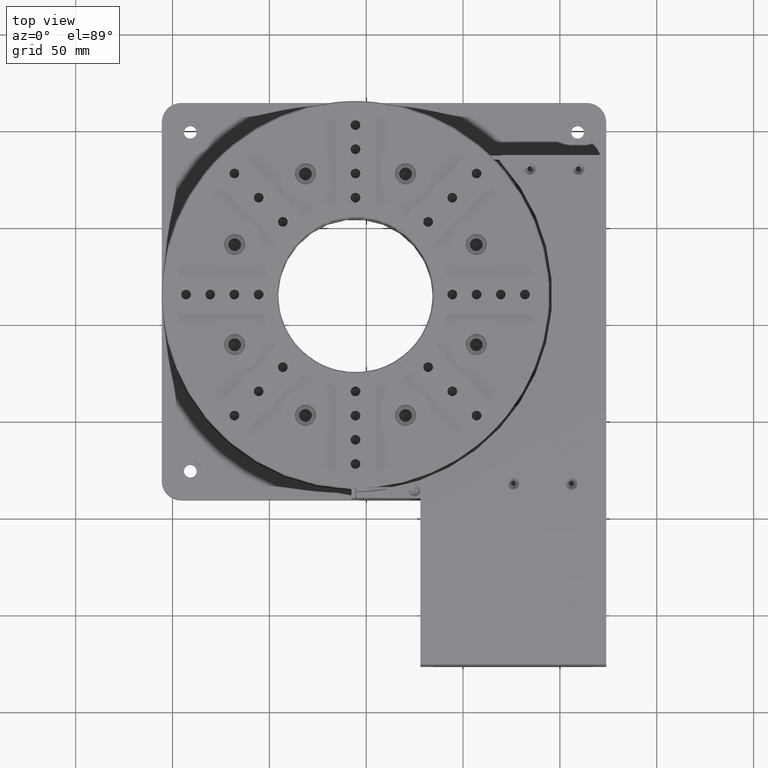
[diagram: clean part render]
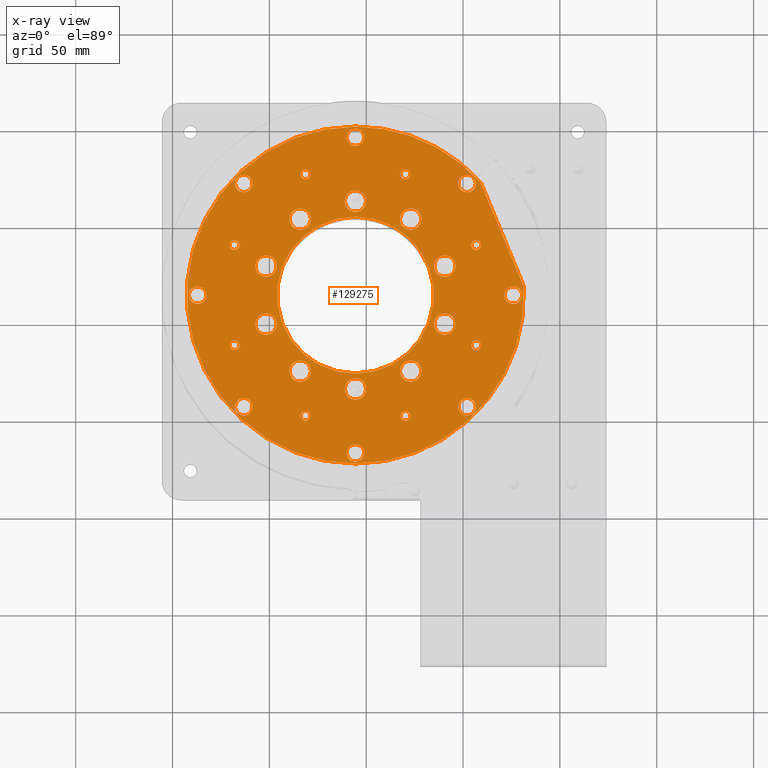
[diagram: x-ray — body ghosted, one internal face saturated and labeled with its STEP entity id]
A machine part, top view, then the same camera in x-ray: the body is ghosted and one INTERNAL B-rep face — a face not visible from any outside direction — is saturated and labeled: STEP entity #129275.
In plain terms, the highlighted planar face has unit normal (-0, -0, 1).
Its self-contained STEP definition (entity closure, byte-faithful):
#194 = VERTEX_POINT ( 'NONE', #18036 ) ;
#768 = EDGE_CURVE ( 'NONE', #14835, #121137, #109022, .T. ) ;
#962 = CARTESIAN_POINT ( 'NONE',  ( 2.060991910634255131, -43.09754799312229778, 277.0000000000000000 ) ) ;
#1285 = EDGE_LOOP ( 'NONE', ( #157682, #37200 ) ) ;
#1311 = CARTESIAN_POINT ( 'NONE',  ( -101.6944517963845840, -0.4556695536046329598, 277.0000000000000000 ) ) ;
#1480 = DIRECTION ( 'NONE',  ( -4.492766048988499823E-16, 0.000000000000000000, 1.000000000000000000 ) ) ;
#2951 = CIRCLE ( 'NONE', #157673, 5.499999999999998224 ) ;
#3037 = CIRCLE ( 'NONE', #157605, 5.500000000000000000 ) ;
#3370 = CARTESIAN_POINT ( 'NONE',  ( -117.9300792005820000, 37.86278635822404937, 277.0000000000000000 ) ) ;
#4134 = CIRCLE ( 'NONE', #177407, 5.500000000000000000 ) ;
#4365 = EDGE_LOOP ( 'NONE', ( #46933, #144324 ) ) ;
#4613 = CARTESIAN_POINT ( 'NONE',  ( 2.060991910634255131, -47.59754799312230489, 277.0000000000000000 ) ) ;
#4945 = AXIS2_PLACEMENT_3D ( 'NONE', #133236, #60585, #149656 ) ;
#5053 = EDGE_CURVE ( 'NONE', #38965, #55274, #182604, .T. ) ;
#5167 = CIRCLE ( 'NONE', #98039, 2.500000000000002220 ) ;
#5267 = DIRECTION ( 'NONE',  ( 0.000000000000000000, -1.000000000000000000, 0.000000000000000000 ) ) ;
#6613 = FACE_BOUND ( 'NONE', #115124, .T. ) ;
#7108 = CIRCLE ( 'NONE', #47364, 2.500000000000000444 ) ;
#7424 = AXIS2_PLACEMENT_3D ( 'NONE', #29230, #30200, #88267 ) ;
#7516 = CARTESIAN_POINT ( 'NONE',  ( -55.56821075606990235, 14.53165467358084051, 277.0000000000000000 ) ) ;
#7551 = FACE_BOUND ( 'NONE', #150418, .T. ) ;
#7592 = CARTESIAN_POINT ( 'NONE',  ( -101.6944517963849961, 29.51897890076534736, 277.0000000000000000 ) ) ;
#7635 = CARTESIAN_POINT ( 'NONE',  ( -113.1974134227736073, 72.16085734028440868, 277.0000000000000000 ) ) ;
#7916 = EDGE_CURVE ( 'NONE', #187386, #91000, #160995, .T. ) ;
#7933 = CIRCLE ( 'NONE', #165704, 4.499999999999997335 ) ;
#8028 = ORIENTED_EDGE ( 'NONE', *, *, #8366, .T. ) ;
#8299 = AXIS2_PLACEMENT_3D ( 'NONE', #118550, #177673, #87613 ) ;
#8366 = EDGE_CURVE ( 'NONE', #194, #188218, #58827, .T. ) ;
#8536 = DIRECTION ( 'NONE',  ( 0.000000000000000000, -1.000000000000000000, -1.036039197880273866E-15 ) ) ;
#8677 = DIRECTION ( 'NONE',  ( -4.492766048988499823E-16, 0.000000000000000000, 1.000000000000000000 ) ) ;
#9459 = CIRCLE ( 'NONE', #133195, 2.500000000000002220 ) ;
#9497 = FACE_BOUND ( 'NONE', #41753, .T. ) ;
#9814 = DIRECTION ( 'NONE',  ( 4.492766048988494893E-16, 0.000000000000000000, -1.000000000000000000 ) ) ;
#10079 = AXIS2_PLACEMENT_3D ( 'NONE', #7592, #141221, #64757 ) ;
#10410 = DIRECTION ( 'NONE',  ( 0.000000000000000000, -1.000000000000000000, 0.000000000000000000 ) ) ;
#10433 = ORIENTED_EDGE ( 'NONE', *, *, #157462, .F. ) ;
#10935 = DIRECTION ( 'NONE',  ( 4.492766048988499823E-16, 0.000000000000000000, -1.000000000000000000 ) ) ;
#11251 = EDGE_LOOP ( 'NONE', ( #77262, #89870 ) ) ;
#12634 = CARTESIAN_POINT ( 'NONE',  ( -55.56821075606990235, 14.53165467358084051, 277.0000000000000000 ) ) ;
#13479 = VERTEX_POINT ( 'NONE', #150755 ) ;
#14143 = DIRECTION ( 'NONE',  ( 0.000000000000000000, -1.000000000000000000, 0.000000000000000000 ) ) ;
#14280 = DIRECTION ( 'NONE',  ( 0.000000000000000000, -1.000000000000000000, 0.000000000000000000 ) ) ;
#14718 = ORIENTED_EDGE ( 'NONE', *, *, #148515, .F. ) ;
#14835 = VERTEX_POINT ( 'NONE', #160768 ) ;
#15668 = CIRCLE ( 'NONE', #65081, 5.500000000000001776 ) ;
#15966 = EDGE_CURVE ( 'NONE', #33350, #103681, #23752, .T. ) ;
#16327 = EDGE_CURVE ( 'NONE', #31220, #59654, #91750, .T. ) ;
#16631 = DIRECTION ( 'NONE',  ( 0.000000000000000000, -1.000000000000000000, 0.000000000000000000 ) ) ;
#17730 = DIRECTION ( 'NONE',  ( 4.492766048988494893E-16, 0.000000000000000000, -1.000000000000000000 ) ) ;
#17964 = VERTEX_POINT ( 'NONE', #190341 ) ;
#18036 = CARTESIAN_POINT ( 'NONE',  ( -55.56821075606990235, 68.53165467358091689, 277.0000000000000000 ) ) ;
#18570 = EDGE_CURVE ( 'NONE', #68179, #146131, #153911, .T. ) ;
#19181 = AXIS2_PLACEMENT_3D ( 'NONE', #24402, #158025, #83405 ) ;
#20126 = CIRCLE ( 'NONE', #177885, 2.500000000000002220 ) ;
#20287 = VECTOR ( 'NONE', #185852, 999.9999999999998863 ) ;
#20375 = EDGE_LOOP ( 'NONE', ( #129954, #144499 ) ) ;
#21167 = FACE_BOUND ( 'NONE', #20375, .T. ) ;
#21556 = DIRECTION ( 'NONE',  ( 0.000000000000000000, -1.000000000000000000, 0.000000000000000000 ) ) ;
#22269 = ORIENTED_EDGE ( 'NONE', *, *, #40706, .F. ) ;
#22428 = CARTESIAN_POINT ( 'NONE',  ( -55.56821075606990235, 14.53165467358084051, 277.0000000000000000 ) ) ;
#22519 = DIRECTION ( 'NONE',  ( -4.492766048988499823E-16, 0.000000000000000000, 1.000000000000000000 ) ) ;
#22941 = DIRECTION ( 'NONE',  ( 0.000000000000000000, -1.000000000000000000, 0.000000000000000000 ) ) ;
#23067 = FACE_BOUND ( 'NONE', #49698, .T. ) ;
#23134 = CARTESIAN_POINT ( 'NONE',  ( 6.793657688441969711, 42.86278635822444727, 277.0000000000000000 ) ) ;
#23176 = AXIS2_PLACEMENT_3D ( 'NONE', #162075, #86538, #145622 ) ;
#23708 = CARTESIAN_POINT ( 'NONE',  ( -9.441969715754888526, 5.044330446396090295, 277.0000000000000000 ) ) ;
#23752 = CIRCLE ( 'NONE', #54561, 5.499999999999998224 ) ;
#23866 = EDGE_CURVE ( 'NONE', #188218, #194, #94819, .T. ) ;
#24039 = FACE_BOUND ( 'NONE', #4365, .T. ) ;
#24389 = EDGE_CURVE ( 'NONE', #82342, #26484, #190821, .T. ) ;
#24402 = CARTESIAN_POINT ( 'NONE',  ( 25.93178924393009765, 14.53165467358169849, 277.0000000000000000 ) ) ;
#24648 = CARTESIAN_POINT ( 'NONE',  ( 2.060991910633040103, 76.66085734028520449, 277.0000000000000000 ) ) ;
#25289 = CARTESIAN_POINT ( 'NONE',  ( -137.0682107560700160, 10.03165467358054030, 277.0000000000000000 ) ) ;
#25564 = DIRECTION ( 'NONE',  ( 4.492766048988499823E-16, 0.000000000000000000, -1.000000000000000000 ) ) ;
#26324 = DIRECTION ( 'NONE',  ( 0.000000000000000000, -1.000000000000000000, 0.000000000000000000 ) ) ;
#26413 = CIRCLE ( 'NONE', #140803, 5.499999999999998224 ) ;
#26484 = VERTEX_POINT ( 'NONE', #52644 ) ;
#26728 = VERTEX_POINT ( 'NONE', #116463 ) ;
#27273 = DIRECTION ( 'NONE',  ( 4.492766048988499823E-16, 0.000000000000000000, -1.000000000000000000 ) ) ;
#27579 = VERTEX_POINT ( 'NONE', #23134 ) ;
#27723 = ORIENTED_EDGE ( 'NONE', *, *, #37144, .T. ) ;
#27868 = CARTESIAN_POINT ( 'NONE',  ( -27.06062601988490002, -30.20566955360414951, 277.0000000000000000 ) ) ;
#28187 = CARTESIAN_POINT ( 'NONE',  ( -29.73707907142649987, 76.89352311809280138, 277.0000000000000000 ) ) ;
#28691 = CIRCLE ( 'NONE', #93603, 4.500000000000003553 ) ;
#28745 = CARTESIAN_POINT ( 'NONE',  ( -113.1974134227731952, -43.09754799312310070, 277.0000000000000000 ) ) ;
#28827 = VERTEX_POINT ( 'NONE', #98572 ) ;
#29230 = CARTESIAN_POINT ( 'NONE',  ( -9.441969715754888526, -0.4556695536039759853, 277.0000000000000000 ) ) ;
#29776 = CARTESIAN_POINT ( 'NONE',  ( -55.56821075606990235, 63.03165467358090268, 277.0000000000000000 ) ) ;
#29992 = ORIENTED_EDGE ( 'NONE', *, *, #87767, .F. ) ;
#30200 = DIRECTION ( 'NONE',  ( 4.492766048988499823E-16, 0.000000000000000000, -1.000000000000000000 ) ) ;
#30696 = ORIENTED_EDGE ( 'NONE', *, *, #49054, .T. ) ;
#30801 = EDGE_CURVE ( 'NONE', #137139, #103382, #81999, .T. ) ;
#31220 = VERTEX_POINT ( 'NONE', #3370 ) ;
#31247 = CARTESIAN_POINT ( 'NONE',  ( -29.73707907142649987, 79.39352311809280138, 277.0000000000000000 ) ) ;
#31622 = VERTEX_POINT ( 'NONE', #102896 ) ;
#32316 = DIRECTION ( 'NONE',  ( 0.000000000000000000, -1.000000000000000000, 0.000000000000000000 ) ) ;
#33054 = DIRECTION ( 'NONE',  ( 4.492766048988494893E-16, 0.000000000000000000, -1.000000000000000000 ) ) ;
#33110 = DIRECTION ( 'NONE',  ( -4.492766048988499823E-16, 0.000000000000000000, 1.000000000000000000 ) ) ;
#33220 = DIRECTION ( 'NONE',  ( 0.000000000000000000, -1.000000000000000000, 0.000000000000000000 ) ) ;
#33229 = EDGE_CURVE ( 'NONE', #13479, #114288, #107196, .T. ) ;
#33244 = AXIS2_PLACEMENT_3D ( 'NONE', #50214, #182937, #96639 ) ;
#33350 = VERTEX_POINT ( 'NONE', #39861 ) ;
#33395 = AXIS2_PLACEMENT_3D ( 'NONE', #137582, #63035, #122085 ) ;
#33530 = CARTESIAN_POINT ( 'NONE',  ( 9.065730717649040926, 72.76784281782559560, 277.0000000000000000 ) ) ;
#34180 = VERTEX_POINT ( 'NONE', #4613 ) ;
#34228 = EDGE_LOOP ( 'NONE', ( #141052, #173402 ) ) ;
#34452 = AXIS2_PLACEMENT_3D ( 'NONE', #22428, #169640, #166766 ) ;
#34720 = VERTEX_POINT ( 'NONE', #23708 ) ;
#35175 = CARTESIAN_POINT ( 'NONE',  ( -9.441969715754888526, -5.955669553604029609, 277.0000000000000000 ) ) ;
#35445 = EDGE_CURVE ( 'NONE', #173317, #50944, #163248, .T. ) ;
#36481 = DIRECTION ( 'NONE',  ( 7.975740119433595341E-17, -1.000000000000000000, -1.276118419109375254E-15 ) ) ;
#36624 = CARTESIAN_POINT ( 'NONE',  ( -84.07579549225521021, 48.26897890076550368, 277.0000000000000000 ) ) ;
#36646 = FACE_BOUND ( 'NONE', #173514, .T. ) ;
#36768 = VERTEX_POINT ( 'NONE', #108714 ) ;
#37144 = EDGE_CURVE ( 'NONE', #57853, #174926, #28691, .T. ) ;
#37200 = ORIENTED_EDGE ( 'NONE', *, *, #177212, .F. ) ;
#37704 = CARTESIAN_POINT ( 'NONE',  ( -137.0682107560700160, 19.03165467358054741, 277.0000000000000000 ) ) ;
#38897 = DIRECTION ( 'NONE',  ( 4.492766048988494893E-16, 0.000000000000000000, -1.000000000000000000 ) ) ;
#38921 = DIRECTION ( 'NONE',  ( 4.492766048988499823E-16, 0.000000000000000000, -1.000000000000000000 ) ) ;
#38965 = VERTEX_POINT ( 'NONE', #127788 ) ;
#39165 = AXIS2_PLACEMENT_3D ( 'NONE', #7635, #66697, #109311 ) ;
#39321 = AXIS2_PLACEMENT_3D ( 'NONE', #75997, #136064, #106008 ) ;
#39492 = FACE_BOUND ( 'NONE', #69692, .T. ) ;
#39808 = DIRECTION ( 'NONE',  ( 0.000000000000000000, -1.000000000000000000, 0.000000000000000000 ) ) ;
#39861 = CARTESIAN_POINT ( 'NONE',  ( -9.441969715754989778, 24.01897890076595132, 277.0000000000000000 ) ) ;
#40357 = AXIS2_PLACEMENT_3D ( 'NONE', #174499, #38921, #97966 ) ;
#40677 = CARTESIAN_POINT ( 'NONE',  ( -101.6944517963845840, -5.955669553604609590, 277.0000000000000000 ) ) ;
#40706 = EDGE_CURVE ( 'NONE', #49304, #74693, #115714, .T. ) ;
#40734 = CIRCLE ( 'NONE', #19181, 4.500000000000000888 ) ;
#41533 = CIRCLE ( 'NONE', #124874, 4.500000000000003553 ) ;
#41731 = AXIS2_PLACEMENT_3D ( 'NONE', #44028, #103066, #58586 ) ;
#41753 = EDGE_LOOP ( 'NONE', ( #118490, #134281 ) ) ;
#42374 = EDGE_LOOP ( 'NONE', ( #108441, #191323 ) ) ;
#43364 = CARTESIAN_POINT ( 'NONE',  ( -117.9300792005818010, -11.29947701106275915, 277.0000000000000000 ) ) ;
#43872 = DIRECTION ( 'NONE',  ( 0.000000000000000000, -1.000000000000000000, 0.000000000000000000 ) ) ;
#44028 = CARTESIAN_POINT ( 'NONE',  ( -81.39934244071291403, -47.83021377093130155, 277.0000000000000000 ) ) ;
#44092 = CIRCLE ( 'NONE', #124531, 87.00000000000000000 ) ;
#44484 = AXIS2_PLACEMENT_3D ( 'NONE', #180346, #183185, #62178 ) ;
#44526 = VERTEX_POINT ( 'NONE', #59980 ) ;
#44740 = EDGE_CURVE ( 'NONE', #76655, #34180, #190092, .T. ) ;
#44897 = CIRCLE ( 'NONE', #41731, 2.500000000000002220 ) ;
#45756 = EDGE_CURVE ( 'NONE', #26728, #53985, #44897, .T. ) ;
#46396 = EDGE_CURVE ( 'NONE', #59654, #31220, #168772, .T. ) ;
#46571 = EDGE_LOOP ( 'NONE', ( #154620, #94267 ) ) ;
#46603 = AXIS2_PLACEMENT_3D ( 'NONE', #146789, #1480, #14143 ) ;
#46933 = ORIENTED_EDGE ( 'NONE', *, *, #113937, .T. ) ;
#47364 = AXIS2_PLACEMENT_3D ( 'NONE', #43364, #128870, #155997 ) ;
#47424 = AXIS2_PLACEMENT_3D ( 'NONE', #80305, #8677, #172321 ) ;
#47803 = CARTESIAN_POINT ( 'NONE',  ( -81.39934244071291403, -50.33021377093130155, 277.0000000000000000 ) ) ;
#47982 = DIRECTION ( 'NONE',  ( 0.000000000000000000, -1.000000000000000000, 0.000000000000000000 ) ) ;
#48025 = EDGE_LOOP ( 'NONE', ( #102483, #159729 ) ) ;
#49054 = EDGE_CURVE ( 'NONE', #103681, #33350, #26413, .T. ) ;
#49250 = ORIENTED_EDGE ( 'NONE', *, *, #126839, .T. ) ;
#49304 = VERTEX_POINT ( 'NONE', #77654 ) ;
#49492 = AXIS2_PLACEMENT_3D ( 'NONE', #61506, #166082, #120551 ) ;
#49698 = EDGE_LOOP ( 'NONE', ( #102197, #163392 ) ) ;
#50214 = CARTESIAN_POINT ( 'NONE',  ( -81.39934244071369562, 76.89352311809260243, 277.0000000000000000 ) ) ;
#50944 = VERTEX_POINT ( 'NONE', #24648 ) ;
#51144 = FACE_BOUND ( 'NONE', #183841, .T. ) ;
#51152 = VERTEX_POINT ( 'NONE', #90356 ) ;
#51232 = AXIS2_PLACEMENT_3D ( 'NONE', #125571, #51981, #111017 ) ;
#51235 = CARTESIAN_POINT ( 'NONE',  ( -21.87376323761419883, 147.4623887375821880, 277.0000000000000000 ) ) ;
#51981 = DIRECTION ( 'NONE',  ( 4.492766048988494893E-16, 0.000000000000000000, -1.000000000000000000 ) ) ;
#52106 = FACE_BOUND ( 'NONE', #157709, .T. ) ;
#52216 = AXIS2_PLACEMENT_3D ( 'NONE', #128077, #52572, #69946 ) ;
#52572 = DIRECTION ( 'NONE',  ( 4.492766048988494893E-16, 0.000000000000000000, -1.000000000000000000 ) ) ;
#52644 = CARTESIAN_POINT ( 'NONE',  ( -27.06062601988490002, -19.20566955360399675, 277.0000000000000000 ) ) ;
#52676 = CARTESIAN_POINT ( 'NONE',  ( -55.56821075606990235, 63.03165467358090268, 277.0000000000000000 ) ) ;
#53065 = CARTESIAN_POINT ( 'NONE',  ( 2.060991910634255131, -43.09754799312229778, 277.0000000000000000 ) ) ;
#53301 = AXIS2_PLACEMENT_3D ( 'NONE', #115259, #156983, #125994 ) ;
#53620 = DIRECTION ( 'NONE',  ( 0.000000000000000000, -1.000000000000000000, 0.000000000000000000 ) ) ;
#53985 = VERTEX_POINT ( 'NONE', #47803 ) ;
#54131 = CARTESIAN_POINT ( 'NONE',  ( -101.6944517963849961, 35.01897890076534736, 277.0000000000000000 ) ) ;
#54561 = AXIS2_PLACEMENT_3D ( 'NONE', #129062, #10935, #157162 ) ;
#54594 = CARTESIAN_POINT ( 'NONE',  ( 2.060991910633040103, 67.66085734028520449, 277.0000000000000000 ) ) ;
#55274 = VERTEX_POINT ( 'NONE', #83779 ) ;
#56166 = CIRCLE ( 'NONE', #145883, 5.499999999999998224 ) ;
#56659 = VERTEX_POINT ( 'NONE', #169141 ) ;
#57853 = VERTEX_POINT ( 'NONE', #181321 ) ;
#58374 = CARTESIAN_POINT ( 'NONE',  ( -27.06062601988514871, 59.26897890076599396, 277.0000000000000000 ) ) ;
#58429 = DIRECTION ( 'NONE',  ( 4.492766048988499823E-16, 0.000000000000000000, -1.000000000000000000 ) ) ;
#58586 = DIRECTION ( 'NONE',  ( 0.000000000000000000, -1.000000000000000000, 0.000000000000000000 ) ) ;
#58827 = CIRCLE ( 'NONE', #185706, 5.499999999999998224 ) ;
#59007 = CARTESIAN_POINT ( 'NONE',  ( -81.39934244071369562, 74.39352311809258822, 277.0000000000000000 ) ) ;
#59654 = VERTEX_POINT ( 'NONE', #82876 ) ;
#59745 = CARTESIAN_POINT ( 'NONE',  ( -81.39934244071369562, 76.89352311809260243, 277.0000000000000000 ) ) ;
#59980 = CARTESIAN_POINT ( 'NONE',  ( -117.9300792005818010, -13.79947701106275915, 277.0000000000000000 ) ) ;
#60051 = DIRECTION ( 'NONE',  ( 9.637352644315600173E-17, -1.000000000000000000, 0.000000000000000000 ) ) ;
#60065 = DIRECTION ( 'NONE',  ( 0.000000000000000000, -1.000000000000000000, 0.000000000000000000 ) ) ;
#60585 = DIRECTION ( 'NONE',  ( -4.492766048988499823E-16, -1.276118419109376043E-15, 1.000000000000000000 ) ) ;
#60720 = DIRECTION ( 'NONE',  ( 4.492766048988499823E-16, 0.000000000000000000, -1.000000000000000000 ) ) ;
#60856 = DIRECTION ( 'NONE',  ( 0.000000000000000000, -1.000000000000000000, 0.000000000000000000 ) ) ;
#61359 = VERTEX_POINT ( 'NONE', #149166 ) ;
#61506 = CARTESIAN_POINT ( 'NONE',  ( -27.06062601988490002, -24.70566955360409978, 277.0000000000000000 ) ) ;
#61968 = ORIENTED_EDGE ( 'NONE', *, *, #768, .T. ) ;
#62178 = DIRECTION ( 'NONE',  ( 9.637352644315587847E-17, -1.000000000000000000, 0.000000000000000000 ) ) ;
#62763 = EDGE_CURVE ( 'NONE', #91000, #187386, #181249, .T. ) ;
#62904 = EDGE_CURVE ( 'NONE', #189210, #137139, #94500, .T. ) ;
#63035 = DIRECTION ( 'NONE',  ( 4.492766048988494893E-16, 0.000000000000000000, -1.000000000000000000 ) ) ;
#63385 = CIRCLE ( 'NONE', #23176, 5.499999999999998224 ) ;
#63525 = AXIS2_PLACEMENT_3D ( 'NONE', #144425, #100809, #159945 ) ;
#64393 = EDGE_LOOP ( 'NONE', ( #84265, #127052 ) ) ;
#64540 = CIRCLE ( 'NONE', #52216, 4.499999999999997335 ) ;
#64757 = DIRECTION ( 'NONE',  ( 0.000000000000000000, -1.000000000000000000, 0.000000000000000000 ) ) ;
#65081 = AXIS2_PLACEMENT_3D ( 'NONE', #108668, #125120, #21556 ) ;
#65661 = FACE_BOUND ( 'NONE', #100907, .T. ) ;
#66610 = FACE_BOUND ( 'NONE', #42374, .T. ) ;
#66697 = DIRECTION ( 'NONE',  ( 4.492766048988494893E-16, 0.000000000000000000, -1.000000000000000000 ) ) ;
#67111 = ORIENTED_EDGE ( 'NONE', *, *, #18570, .F. ) ;
#67172 = EDGE_CURVE ( 'NONE', #26484, #82342, #157752, .T. ) ;
#67386 = ORIENTED_EDGE ( 'NONE', *, *, #100213, .T. ) ;
#68179 = VERTEX_POINT ( 'NONE', #131557 ) ;
#68933 = EDGE_CURVE ( 'NONE', #36768, #146166, #130096, .T. ) ;
#69470 = FACE_BOUND ( 'NONE', #34228, .T. ) ;
#69692 = EDGE_LOOP ( 'NONE', ( #95875, #70433 ) ) ;
#69946 = DIRECTION ( 'NONE',  ( 0.000000000000000000, -1.000000000000000000, 0.000000000000000000 ) ) ;
#70235 = EDGE_CURVE ( 'NONE', #118057, #168531, #3037, .T. ) ;
#70433 = ORIENTED_EDGE ( 'NONE', *, *, #153312, .T. ) ;
#70769 = DIRECTION ( 'NONE',  ( -4.492766048988499823E-16, 0.000000000000000000, 1.000000000000000000 ) ) ;
#71743 = EDGE_CURVE ( 'NONE', #139786, #28827, #15668, .T. ) ;
#71825 = CIRCLE ( 'NONE', #53301, 5.500000000000000000 ) ;
#71847 = EDGE_CURVE ( 'NONE', #141607, #160347, #89854, .T. ) ;
#73007 = DIRECTION ( 'NONE',  ( 4.492766048988499823E-16, 0.000000000000000000, -1.000000000000000000 ) ) ;
#73330 = AXIS2_PLACEMENT_3D ( 'NONE', #84328, #70769, #190872 ) ;
#73515 = AXIS2_PLACEMENT_3D ( 'NONE', #7516, #126619, #168312 ) ;
#73750 = EDGE_LOOP ( 'NONE', ( #113759, #92155 ) ) ;
#73815 = ORIENTED_EDGE ( 'NONE', *, *, #23866, .T. ) ;
#74565 = DIRECTION ( 'NONE',  ( -4.492766048988499823E-16, 0.000000000000000000, 1.000000000000000000 ) ) ;
#74693 = VERTEX_POINT ( 'NONE', #83457 ) ;
#75591 = CARTESIAN_POINT ( 'NONE',  ( -101.6944517963845840, 5.044330446395350442, 277.0000000000000000 ) ) ;
#75997 = CARTESIAN_POINT ( 'NONE',  ( 6.793657688442309883, -11.29947701106189939, 277.0000000000000000 ) ) ;
#76655 = VERTEX_POINT ( 'NONE', #137705 ) ;
#76824 = ORIENTED_EDGE ( 'NONE', *, *, #62904, .T. ) ;
#77262 = ORIENTED_EDGE ( 'NONE', *, *, #164441, .T. ) ;
#77263 = AXIS2_PLACEMENT_3D ( 'NONE', #180607, #184420, #5267 ) ;
#77460 = CARTESIAN_POINT ( 'NONE',  ( -55.56821075606990235, 55.03165467358089558, 277.0000000000000000 ) ) ;
#77654 = CARTESIAN_POINT ( 'NONE',  ( 6.793657688442309883, -13.79947701106190117, 277.0000000000000000 ) ) ;
#78460 = EDGE_CURVE ( 'NONE', #55274, #38965, #40734, .T. ) ;
#78977 = VERTEX_POINT ( 'NONE', #77460 ) ;
#79218 = DIRECTION ( 'NONE',  ( 4.492766048988499823E-16, 4.329837076251034727E-32, -1.000000000000000000 ) ) ;
#79258 = AXIS2_PLACEMENT_3D ( 'NONE', #92132, #135731, #152161 ) ;
#79295 = AXIS2_PLACEMENT_3D ( 'NONE', #29776, #60720, #190547 ) ;
#79485 = DIRECTION ( 'NONE',  ( 0.000000000000000000, -1.000000000000000000, 0.000000000000000000 ) ) ;
#79644 = AXIS2_PLACEMENT_3D ( 'NONE', #127783, #84168, #172355 ) ;
#80158 = FACE_BOUND ( 'NONE', #114417, .T. ) ;
#80305 = CARTESIAN_POINT ( 'NONE',  ( -29.73707907142649987, 76.89352311809280138, 277.0000000000000000 ) ) ;
#80499 = AXIS2_PLACEMENT_3D ( 'NONE', #103873, #17730, #132985 ) ;
#81311 = CARTESIAN_POINT ( 'NONE',  ( -9.441969715754989778, 35.01897890076610054, 277.0000000000000000 ) ) ;
#81999 = CIRCLE ( 'NONE', #181081, 87.00000000000000000 ) ;
#82065 = FACE_BOUND ( 'NONE', #158498, .T. ) ;
#82342 = VERTEX_POINT ( 'NONE', #27868 ) ;
#82876 = CARTESIAN_POINT ( 'NONE',  ( -117.9300792005820000, 42.86278635822404937, 277.0000000000000000 ) ) ;
#83405 = DIRECTION ( 'NONE',  ( 0.000000000000000000, -1.000000000000000000, 0.000000000000000000 ) ) ;
#83457 = CARTESIAN_POINT ( 'NONE',  ( 6.793657688442319653, -8.799477011061931364, 277.0000000000000000 ) ) ;
#83779 = CARTESIAN_POINT ( 'NONE',  ( 25.93178924393009765, 10.03165467358169849, 277.0000000000000000 ) ) ;
#83995 = FACE_BOUND ( 'NONE', #11251, .T. ) ;
#84168 = DIRECTION ( 'NONE',  ( 4.492766048988499823E-16, 4.329837076251034727E-32, -1.000000000000000000 ) ) ;
#84265 = ORIENTED_EDGE ( 'NONE', *, *, #16327, .F. ) ;
#84328 = CARTESIAN_POINT ( 'NONE',  ( -81.39934244071291403, -47.83021377093130155, 277.0000000000000000 ) ) ;
#85420 = CARTESIAN_POINT ( 'NONE',  ( -27.06062601988514871, 48.26897890076590159, 277.0000000000000000 ) ) ;
#86538 = DIRECTION ( 'NONE',  ( 4.492766048988499823E-16, 0.000000000000000000, -1.000000000000000000 ) ) ;
#87114 = EDGE_LOOP ( 'NONE', ( #49250, #144786 ) ) ;
#87497 = ORIENTED_EDGE ( 'NONE', *, *, #187252, .T. ) ;
#87613 = DIRECTION ( 'NONE',  ( 0.000000000000000000, -1.000000000000000000, 0.000000000000000000 ) ) ;
#87767 = EDGE_CURVE ( 'NONE', #185422, #103382, #155800, .T. ) ;
#88267 = DIRECTION ( 'NONE',  ( 0.000000000000000000, -1.000000000000000000, 0.000000000000000000 ) ) ;
#89765 = ORIENTED_EDGE ( 'NONE', *, *, #137080, .T. ) ;
#89854 = CIRCLE ( 'NONE', #40357, 5.499999999999998224 ) ;
#89870 = ORIENTED_EDGE ( 'NONE', *, *, #71847, .T. ) ;
#90356 = CARTESIAN_POINT ( 'NONE',  ( -84.07579549225521021, 59.26897890076560316, 277.0000000000000000 ) ) ;
#90531 = AXIS2_PLACEMENT_3D ( 'NONE', #136294, #92676, #177050 ) ;
#91000 = VERTEX_POINT ( 'NONE', #37704 ) ;
#91750 = CIRCLE ( 'NONE', #79258, 2.500000000000002220 ) ;
#92078 = VERTEX_POINT ( 'NONE', #118668 ) ;
#92123 = ORIENTED_EDGE ( 'NONE', *, *, #157284, .F. ) ;
#92132 = CARTESIAN_POINT ( 'NONE',  ( -117.9300792005820000, 40.36278635822404937, 277.0000000000000000 ) ) ;
#92155 = ORIENTED_EDGE ( 'NONE', *, *, #106762, .F. ) ;
#92676 = DIRECTION ( 'NONE',  ( 4.492766048988499823E-16, 0.000000000000000000, -1.000000000000000000 ) ) ;
#93603 = AXIS2_PLACEMENT_3D ( 'NONE', #121142, #33054, #16631 ) ;
#94058 = VERTEX_POINT ( 'NONE', #182600 ) ;
#94126 = DIRECTION ( 'NONE',  ( 4.492766048988494893E-16, 0.000000000000000000, -1.000000000000000000 ) ) ;
#94267 = ORIENTED_EDGE ( 'NONE', *, *, #62763, .T. ) ;
#94500 = CIRCLE ( 'NONE', #4945, 87.00000000000000000 ) ;
#94727 = FACE_BOUND ( 'NONE', #104724, .T. ) ;
#94819 = CIRCLE ( 'NONE', #79295, 5.499999999999998224 ) ;
#95670 = CARTESIAN_POINT ( 'NONE',  ( -55.56821075606990235, 14.53165467358084051, 277.0000000000000000 ) ) ;
#95875 = ORIENTED_EDGE ( 'NONE', *, *, #98226, .T. ) ;
#96639 = DIRECTION ( 'NONE',  ( 0.000000000000000000, -1.000000000000000000, 0.000000000000000000 ) ) ;
#96783 = EDGE_CURVE ( 'NONE', #152941, #78977, #141667, .T. ) ;
#97214 = CARTESIAN_POINT ( 'NONE',  ( -55.56821075606990235, 91.53165467358078899, 277.0000000000000000 ) ) ;
#97782 = CARTESIAN_POINT ( 'NONE',  ( 6.793657688442309883, -11.29947701106189939, 277.0000000000000000 ) ) ;
#97966 = DIRECTION ( 'NONE',  ( 0.000000000000000000, -1.000000000000000000, 0.000000000000000000 ) ) ;
#98039 = AXIS2_PLACEMENT_3D ( 'NONE', #28187, #74565, #60065 ) ;
#98074 = VERTEX_POINT ( 'NONE', #35175 ) ;
#98226 = EDGE_CURVE ( 'NONE', #17964, #56659, #64540, .T. ) ;
#98311 = VERTEX_POINT ( 'NONE', #133809 ) ;
#98572 = CARTESIAN_POINT ( 'NONE',  ( -84.07579549225430071, -30.20566955360455097, 277.0000000000000000 ) ) ;
#100184 = VERTEX_POINT ( 'NONE', #122173 ) ;
#100213 = EDGE_CURVE ( 'NONE', #98074, #34720, #71825, .T. ) ;
#100744 = DIRECTION ( 'NONE',  ( 0.000000000000000000, -1.000000000000000000, 0.000000000000000000 ) ) ;
#100809 = DIRECTION ( 'NONE',  ( 4.492766048988499823E-16, 0.000000000000000000, -1.000000000000000000 ) ) ;
#100907 = EDGE_LOOP ( 'NONE', ( #14718, #67111 ) ) ;
#101172 = VERTEX_POINT ( 'NONE', #36624 ) ;
#101711 = DIRECTION ( 'NONE',  ( 4.492766048988499823E-16, 4.329837076251034727E-32, -1.000000000000000000 ) ) ;
#101781 = AXIS2_PLACEMENT_3D ( 'NONE', #59745, #106149, #14280 ) ;
#102149 = EDGE_CURVE ( 'NONE', #44526, #98311, #7108, .T. ) ;
#102197 = ORIENTED_EDGE ( 'NONE', *, *, #96783, .T. ) ;
#102483 = ORIENTED_EDGE ( 'NONE', *, *, #176387, .T. ) ;
#102896 = CARTESIAN_POINT ( 'NONE',  ( -29.73707907142649987, 74.39352311809280138, 277.0000000000000000 ) ) ;
#103066 = DIRECTION ( 'NONE',  ( -4.492766048988499823E-16, 0.000000000000000000, 1.000000000000000000 ) ) ;
#103382 = VERTEX_POINT ( 'NONE', #157238 ) ;
#103681 = VERTEX_POINT ( 'NONE', #81311 ) ;
#103873 = CARTESIAN_POINT ( 'NONE',  ( 25.93178924393009765, 14.53165467358169849, 277.0000000000000000 ) ) ;
#104724 = EDGE_LOOP ( 'NONE', ( #73815, #8028 ) ) ;
#104877 = EDGE_CURVE ( 'NONE', #174926, #57853, #41533, .T. ) ;
#104909 = AXIS2_PLACEMENT_3D ( 'NONE', #175377, #144352, #100744 ) ;
#105497 = AXIS2_PLACEMENT_3D ( 'NONE', #142465, #9814, #39808 ) ;
#106008 = DIRECTION ( 'NONE',  ( 0.000000000000000000, -1.000000000000000000, 0.000000000000000000 ) ) ;
#106149 = DIRECTION ( 'NONE',  ( -4.492766048988499823E-16, 0.000000000000000000, 1.000000000000000000 ) ) ;
#106176 = DIRECTION ( 'NONE',  ( 7.975740119433595341E-17, -1.000000000000000000, -1.276118419109375254E-15 ) ) ;
#106179 = ORIENTED_EDGE ( 'NONE', *, *, #176245, .F. ) ;
#106715 = DIRECTION ( 'NONE',  ( 4.492766048988499823E-16, 0.000000000000000000, -1.000000000000000000 ) ) ;
#106762 = EDGE_CURVE ( 'NONE', #146166, #36768, #20126, .T. ) ;
#107196 = CIRCLE ( 'NONE', #190768, 4.500000000000003553 ) ;
#107943 = CIRCLE ( 'NONE', #104909, 5.500000000000001776 ) ;
#108441 = ORIENTED_EDGE ( 'NONE', *, *, #155018, .T. ) ;
#108668 = CARTESIAN_POINT ( 'NONE',  ( -84.07579549225430071, -24.70566955360449768, 277.0000000000000000 ) ) ;
#108714 = CARTESIAN_POINT ( 'NONE',  ( -29.73707907142565077, -50.33021377093069759, 277.0000000000000000 ) ) ;
#109022 = CIRCLE ( 'NONE', #90531, 5.499999999999998224 ) ;
#109311 = DIRECTION ( 'NONE',  ( 0.000000000000000000, -1.000000000000000000, 0.000000000000000000 ) ) ;
#109405 = CIRCLE ( 'NONE', #44484, 4.500000000000003553 ) ;
#110188 = FACE_OUTER_BOUND ( 'NONE', #165448, .T. ) ;
#110781 = CARTESIAN_POINT ( 'NONE',  ( -55.56821075606990235, 101.5316546735807890, 277.0000000000000000 ) ) ;
#111017 = DIRECTION ( 'NONE',  ( 0.000000000000000000, -1.000000000000000000, 0.000000000000000000 ) ) ;
#111144 = FACE_BOUND ( 'NONE', #135663, .T. ) ;
#112363 = AXIS2_PLACEMENT_3D ( 'NONE', #143052, #139243, #10410 ) ;
#113259 = DIRECTION ( 'NONE',  ( 0.000000000000000000, -1.000000000000000000, 0.000000000000000000 ) ) ;
#113759 = ORIENTED_EDGE ( 'NONE', *, *, #68933, .F. ) ;
#113937 = EDGE_CURVE ( 'NONE', #92078, #61359, #181465, .T. ) ;
#114288 = VERTEX_POINT ( 'NONE', #160630 ) ;
#114417 = EDGE_LOOP ( 'NONE', ( #92123, #190892 ) ) ;
#114465 = AXIS2_PLACEMENT_3D ( 'NONE', #128428, #187529, #143902 ) ;
#114810 = EDGE_CURVE ( 'NONE', #74693, #49304, #147559, .T. ) ;
#115124 = EDGE_LOOP ( 'NONE', ( #10433, #106179 ) ) ;
#115259 = CARTESIAN_POINT ( 'NONE',  ( -9.441969715754888526, -0.4556695536039759853, 277.0000000000000000 ) ) ;
#115531 = CARTESIAN_POINT ( 'NONE',  ( -55.56821075606990235, -33.96834532641915416, 277.0000000000000000 ) ) ;
#115714 = CIRCLE ( 'NONE', #146575, 2.500000000000000444 ) ;
#116038 = CIRCLE ( 'NONE', #63525, 5.499999999999998224 ) ;
#116463 = CARTESIAN_POINT ( 'NONE',  ( -81.39934244071291403, -45.33021377093130155, 277.0000000000000000 ) ) ;
#116856 = CIRCLE ( 'NONE', #33395, 4.500000000000003553 ) ;
#117268 = CIRCLE ( 'NONE', #101781, 2.500000000000002220 ) ;
#117933 = CIRCLE ( 'NONE', #34452, 40.50000000000000000 ) ;
#117971 = CARTESIAN_POINT ( 'NONE',  ( 6.793657688441969711, 40.36278635822445437, 277.0000000000000000 ) ) ;
#118057 = VERTEX_POINT ( 'NONE', #75591 ) ;
#118282 = CIRCLE ( 'NONE', #10079, 5.500000000000001776 ) ;
#118490 = ORIENTED_EDGE ( 'NONE', *, *, #174230, .T. ) ;
#118550 = CARTESIAN_POINT ( 'NONE',  ( -27.06062601988490002, -24.70566955360409978, 277.0000000000000000 ) ) ;
#118668 = CARTESIAN_POINT ( 'NONE',  ( -113.1974134227736073, 67.66085734028440868, 277.0000000000000000 ) ) ;
#118826 = EDGE_LOOP ( 'NONE', ( #155481, #89765 ) ) ;
#120551 = DIRECTION ( 'NONE',  ( 0.000000000000000000, -1.000000000000000000, 0.000000000000000000 ) ) ;
#121137 = VERTEX_POINT ( 'NONE', #185077 ) ;
#121142 = CARTESIAN_POINT ( 'NONE',  ( -55.56821075606990235, 96.03165467358090268, 277.0000000000000000 ) ) ;
#121238 = CIRCLE ( 'NONE', #146033, 5.500000000000001776 ) ;
#121562 = DIRECTION ( 'NONE',  ( 4.492766048988494893E-16, 0.000000000000000000, -1.000000000000000000 ) ) ;
#122085 = DIRECTION ( 'NONE',  ( 0.000000000000000000, -1.000000000000000000, 0.000000000000000000 ) ) ;
#122173 = CARTESIAN_POINT ( 'NONE',  ( 6.793657688441969711, 37.86278635822445437, 277.0000000000000000 ) ) ;
#122686 = CIRCLE ( 'NONE', #147462, 4.499999999999997335 ) ;
#123117 = EDGE_CURVE ( 'NONE', #159073, #94058, #107943, .T. ) ;
#123846 = ORIENTED_EDGE ( 'NONE', *, *, #15966, .T. ) ;
#124531 = AXIS2_PLACEMENT_3D ( 'NONE', #12634, #160803, #106176 ) ;
#124536 = EDGE_CURVE ( 'NONE', #27579, #100184, #129970, .T. ) ;
#124684 = CIRCLE ( 'NONE', #47424, 2.500000000000002220 ) ;
#124737 = FACE_BOUND ( 'NONE', #127387, .T. ) ;
#124874 = AXIS2_PLACEMENT_3D ( 'NONE', #167780, #94126, #33220 ) ;
#125120 = DIRECTION ( 'NONE',  ( 4.492766048988499823E-16, 0.000000000000000000, -1.000000000000000000 ) ) ;
#125571 = CARTESIAN_POINT ( 'NONE',  ( -137.0682107560700160, 14.53165467358055984, 277.0000000000000000 ) ) ;
#125695 = FACE_BOUND ( 'NONE', #64393, .T. ) ;
#125994 = DIRECTION ( 'NONE',  ( 0.000000000000000000, -1.000000000000000000, 0.000000000000000000 ) ) ;
#126619 = DIRECTION ( 'NONE',  ( 4.492766048988499823E-16, 1.370645709413771902E-15, -1.000000000000000000 ) ) ;
#126658 = FACE_BOUND ( 'NONE', #46571, .T. ) ;
#126839 = EDGE_CURVE ( 'NONE', #94058, #159073, #118282, .T. ) ;
#127052 = ORIENTED_EDGE ( 'NONE', *, *, #46396, .F. ) ;
#127230 = DIRECTION ( 'NONE',  ( 0.000000000000000000, -1.000000000000000000, 0.000000000000000000 ) ) ;
#127387 = EDGE_LOOP ( 'NONE', ( #22269, #168677 ) ) ;
#127783 = CARTESIAN_POINT ( 'NONE',  ( 2.060991910633040103, 72.16085734028521870, 277.0000000000000000 ) ) ;
#127788 = CARTESIAN_POINT ( 'NONE',  ( 25.93178924393009765, 19.03165467358169849, 277.0000000000000000 ) ) ;
#128077 = CARTESIAN_POINT ( 'NONE',  ( -113.1974134227731952, -43.09754799312310070, 277.0000000000000000 ) ) ;
#128428 = CARTESIAN_POINT ( 'NONE',  ( -137.0682107560700160, 14.53165467358055984, 277.0000000000000000 ) ) ;
#128870 = DIRECTION ( 'NONE',  ( -4.492766048988499823E-16, 0.000000000000000000, 1.000000000000000000 ) ) ;
#129062 = CARTESIAN_POINT ( 'NONE',  ( -9.441969715754989778, 29.51897890076599751, 277.0000000000000000 ) ) ;
#129275 = ADVANCED_FACE ( 'NONE', ( #23067, #9497, #173154, #139279, #184810, #94727, #83995, #7551, #155710, #82065, #36646, #111144, #51144, #66610, #21167, #39492, #126658, #24039, #52106, #69470, #6613, #65661, #125695, #141180, #80158, #171214, #124737, #110188 ), #185761, .T. ) ;
#129954 = ORIENTED_EDGE ( 'NONE', *, *, #33229, .T. ) ;
#129970 = CIRCLE ( 'NONE', #77263, 2.500000000000002220 ) ;
#130096 = CIRCLE ( 'NONE', #46603, 2.500000000000002220 ) ;
#131321 = AXIS2_PLACEMENT_3D ( 'NONE', #53065, #79218, #170288 ) ;
#131557 = CARTESIAN_POINT ( 'NONE',  ( -81.39934244071369562, 79.39352311809260243, 277.0000000000000000 ) ) ;
#132649 = CARTESIAN_POINT ( 'NONE',  ( -84.07579549225430071, -19.20566955360440176, 277.0000000000000000 ) ) ;
#132757 = CARTESIAN_POINT ( 'NONE',  ( -101.6944517963845840, -0.4556695536046329598, 277.0000000000000000 ) ) ;
#132985 = DIRECTION ( 'NONE',  ( 0.000000000000000000, -1.000000000000000000, 0.000000000000000000 ) ) ;
#133195 = AXIS2_PLACEMENT_3D ( 'NONE', #117971, #178058, #60856 ) ;
#133236 = CARTESIAN_POINT ( 'NONE',  ( -55.56821075606990235, 14.53165467358084051, 277.0000000000000000 ) ) ;
#133809 = CARTESIAN_POINT ( 'NONE',  ( -117.9300792005818010, -8.799477011062769805, 277.0000000000000000 ) ) ;
#134087 = ORIENTED_EDGE ( 'NONE', *, *, #104877, .T. ) ;
#134281 = ORIENTED_EDGE ( 'NONE', *, *, #71743, .T. ) ;
#135663 = EDGE_LOOP ( 'NONE', ( #146025, #87497 ) ) ;
#135731 = DIRECTION ( 'NONE',  ( -4.492766048988499823E-16, 0.000000000000000000, 1.000000000000000000 ) ) ;
#135899 = ORIENTED_EDGE ( 'NONE', *, *, #24389, .T. ) ;
#136064 = DIRECTION ( 'NONE',  ( -4.492766048988499823E-16, 0.000000000000000000, 1.000000000000000000 ) ) ;
#136294 = CARTESIAN_POINT ( 'NONE',  ( -55.56821075606990235, -33.96834532641915416, 277.0000000000000000 ) ) ;
#136535 = EDGE_CURVE ( 'NONE', #101172, #51152, #63385, .T. ) ;
#137080 = EDGE_CURVE ( 'NONE', #51152, #101172, #116038, .T. ) ;
#137139 = VERTEX_POINT ( 'NONE', #172553 ) ;
#137140 = CIRCLE ( 'NONE', #112363, 2.500000000000000444 ) ;
#137582 = CARTESIAN_POINT ( 'NONE',  ( -55.56821075606990235, -66.96834532641919679, 277.0000000000000000 ) ) ;
#137705 = CARTESIAN_POINT ( 'NONE',  ( 2.060991910634255131, -38.59754799312225515, 277.0000000000000000 ) ) ;
#138158 = CIRCLE ( 'NONE', #73330, 2.500000000000002220 ) ;
#138535 = ORIENTED_EDGE ( 'NONE', *, *, #180452, .T. ) ;
#139243 = DIRECTION ( 'NONE',  ( -4.492766048988499823E-16, 0.000000000000000000, 1.000000000000000000 ) ) ;
#139279 = FACE_BOUND ( 'NONE', #87114, .T. ) ;
#139786 = VERTEX_POINT ( 'NONE', #132649 ) ;
#140785 = ORIENTED_EDGE ( 'NONE', *, *, #30801, .T. ) ;
#140803 = AXIS2_PLACEMENT_3D ( 'NONE', #144640, #58429, #43872 ) ;
#141052 = ORIENTED_EDGE ( 'NONE', *, *, #166706, .F. ) ;
#141180 = FACE_BOUND ( 'NONE', #1285, .T. ) ;
#141221 = DIRECTION ( 'NONE',  ( 4.492766048988499823E-16, 0.000000000000000000, -1.000000000000000000 ) ) ;
#141607 = VERTEX_POINT ( 'NONE', #58374 ) ;
#141667 = CIRCLE ( 'NONE', #73515, 40.50000000000000000 ) ;
#141843 = VERTEX_POINT ( 'NONE', #31247 ) ;
#142465 = CARTESIAN_POINT ( 'NONE',  ( -113.1974134227736073, 72.16085734028440868, 277.0000000000000000 ) ) ;
#143052 = CARTESIAN_POINT ( 'NONE',  ( -117.9300792005818010, -11.29947701106275915, 277.0000000000000000 ) ) ;
#143091 = DIRECTION ( 'NONE',  ( -4.492766048988499823E-16, -1.036039197880273866E-15, 1.000000000000000000 ) ) ;
#143902 = DIRECTION ( 'NONE',  ( 0.000000000000000000, -1.000000000000000000, 0.000000000000000000 ) ) ;
#144324 = ORIENTED_EDGE ( 'NONE', *, *, #171781, .T. ) ;
#144352 = DIRECTION ( 'NONE',  ( 4.492766048988499823E-16, 0.000000000000000000, -1.000000000000000000 ) ) ;
#144425 = CARTESIAN_POINT ( 'NONE',  ( -84.07579549225521021, 53.76897890076560316, 277.0000000000000000 ) ) ;
#144499 = ORIENTED_EDGE ( 'NONE', *, *, #160497, .T. ) ;
#144640 = CARTESIAN_POINT ( 'NONE',  ( -9.441969715754989778, 29.51897890076599751, 277.0000000000000000 ) ) ;
#144786 = ORIENTED_EDGE ( 'NONE', *, *, #123117, .T. ) ;
#145379 = DIRECTION ( 'NONE',  ( 0.000000000000000000, -1.000000000000000000, 0.000000000000000000 ) ) ;
#145622 = DIRECTION ( 'NONE',  ( 0.000000000000000000, -1.000000000000000000, 0.000000000000000000 ) ) ;
#145883 = AXIS2_PLACEMENT_3D ( 'NONE', #115531, #174679, #127230 ) ;
#146025 = ORIENTED_EDGE ( 'NONE', *, *, #35445, .T. ) ;
#146033 = AXIS2_PLACEMENT_3D ( 'NONE', #171090, #170153, #22941 ) ;
#146131 = VERTEX_POINT ( 'NONE', #59007 ) ;
#146166 = VERTEX_POINT ( 'NONE', #146168 ) ;
#146168 = CARTESIAN_POINT ( 'NONE',  ( -29.73707907142565077, -45.33021377093079707, 277.0000000000000000 ) ) ;
#146529 = CIRCLE ( 'NONE', #7424, 5.500000000000000000 ) ;
#146575 = AXIS2_PLACEMENT_3D ( 'NONE', #97782, #156897, #113259 ) ;
#146789 = CARTESIAN_POINT ( 'NONE',  ( -29.73707907142565077, -47.83021377093069759, 277.0000000000000000 ) ) ;
#147462 = AXIS2_PLACEMENT_3D ( 'NONE', #28745, #121562, #47982 ) ;
#147490 = DIRECTION ( 'NONE',  ( 0.000000000000000000, -1.000000000000000000, 0.000000000000000000 ) ) ;
#147559 = CIRCLE ( 'NONE', #39321, 2.500000000000000444 ) ;
#148515 = EDGE_CURVE ( 'NONE', #146131, #68179, #117268, .T. ) ;
#149166 = CARTESIAN_POINT ( 'NONE',  ( -113.1974134227736073, 76.66085734028439447, 277.0000000000000000 ) ) ;
#149656 = DIRECTION ( 'NONE',  ( 7.975740119433595341E-17, -1.000000000000000000, -1.276118419109375254E-15 ) ) ;
#150418 = EDGE_LOOP ( 'NONE', ( #123846, #30696 ) ) ;
#150755 = CARTESIAN_POINT ( 'NONE',  ( -55.56821075606990235, -71.46834532641919679, 277.0000000000000000 ) ) ;
#152161 = DIRECTION ( 'NONE',  ( 0.000000000000000000, -1.000000000000000000, 0.000000000000000000 ) ) ;
#152941 = VERTEX_POINT ( 'NONE', #170204 ) ;
#153312 = EDGE_CURVE ( 'NONE', #56659, #17964, #122686, .T. ) ;
#153659 = CARTESIAN_POINT ( 'NONE',  ( -55.56821075606990235, 14.53165467358084051, 277.0000000000000000 ) ) ;
#153911 = CIRCLE ( 'NONE', #33244, 2.500000000000002220 ) ;
#154620 = ORIENTED_EDGE ( 'NONE', *, *, #7916, .T. ) ;
#155018 = EDGE_CURVE ( 'NONE', #34180, #76655, #7933, .T. ) ;
#155140 = CARTESIAN_POINT ( 'NONE',  ( -55.56821075606990235, -66.96834532641919679, 277.0000000000000000 ) ) ;
#155481 = ORIENTED_EDGE ( 'NONE', *, *, #136535, .T. ) ;
#155710 = FACE_BOUND ( 'NONE', #164950, .T. ) ;
#155800 = LINE ( 'NONE', #51235, #20287 ) ;
#155997 = DIRECTION ( 'NONE',  ( 0.000000000000000000, -1.000000000000000000, 0.000000000000000000 ) ) ;
#156897 = DIRECTION ( 'NONE',  ( -4.492766048988499823E-16, 0.000000000000000000, 1.000000000000000000 ) ) ;
#156983 = DIRECTION ( 'NONE',  ( 4.492766048988499823E-16, 0.000000000000000000, -1.000000000000000000 ) ) ;
#157162 = DIRECTION ( 'NONE',  ( 0.000000000000000000, -1.000000000000000000, 0.000000000000000000 ) ) ;
#157238 = CARTESIAN_POINT ( 'NONE',  ( 31.31409110206224966, 19.05554943721104877, 277.0000000000000000 ) ) ;
#157284 = EDGE_CURVE ( 'NONE', #53985, #26728, #138158, .T. ) ;
#157462 = EDGE_CURVE ( 'NONE', #31622, #141843, #5167, .T. ) ;
#157605 = AXIS2_PLACEMENT_3D ( 'NONE', #132757, #27273, #145379 ) ;
#157673 = AXIS2_PLACEMENT_3D ( 'NONE', #180379, #106715, #147490 ) ;
#157682 = ORIENTED_EDGE ( 'NONE', *, *, #102149, .F. ) ;
#157709 = EDGE_LOOP ( 'NONE', ( #134087, #27723 ) ) ;
#157752 = CIRCLE ( 'NONE', #49492, 5.499999999999998224 ) ;
#158025 = DIRECTION ( 'NONE',  ( 4.492766048988494893E-16, 0.000000000000000000, -1.000000000000000000 ) ) ;
#158071 = CARTESIAN_POINT ( 'NONE',  ( -29.73707907142565077, -47.83021377093069759, 277.0000000000000000 ) ) ;
#158498 = EDGE_LOOP ( 'NONE', ( #135899, #189153 ) ) ;
#158835 = AXIS2_PLACEMENT_3D ( 'NONE', #95670, #143091, #8536 ) ;
#159073 = VERTEX_POINT ( 'NONE', #54131 ) ;
#159729 = ORIENTED_EDGE ( 'NONE', *, *, #70235, .T. ) ;
#159945 = DIRECTION ( 'NONE',  ( 0.000000000000000000, -1.000000000000000000, 0.000000000000000000 ) ) ;
#160347 = VERTEX_POINT ( 'NONE', #85420 ) ;
#160497 = EDGE_CURVE ( 'NONE', #114288, #13479, #116856, .T. ) ;
#160630 = CARTESIAN_POINT ( 'NONE',  ( -55.56821075606990235, -62.46834532641919679, 277.0000000000000000 ) ) ;
#160768 = CARTESIAN_POINT ( 'NONE',  ( -55.56821075606990235, -39.46834532641914706, 277.0000000000000000 ) ) ;
#160803 = DIRECTION ( 'NONE',  ( -4.492766048988499823E-16, -1.276118419109376043E-15, 1.000000000000000000 ) ) ;
#160995 = CIRCLE ( 'NONE', #114465, 4.499999999999999112 ) ;
#162075 = CARTESIAN_POINT ( 'NONE',  ( -84.07579549225521021, 53.76897890076560316, 277.0000000000000000 ) ) ;
#163248 = CIRCLE ( 'NONE', #79644, 4.500000000000003553 ) ;
#163392 = ORIENTED_EDGE ( 'NONE', *, *, #171741, .T. ) ;
#164441 = EDGE_CURVE ( 'NONE', #160347, #141607, #2951, .T. ) ;
#164950 = EDGE_LOOP ( 'NONE', ( #67386, #189101 ) ) ;
#165448 = EDGE_LOOP ( 'NONE', ( #29992, #138535, #76824, #140785 ) ) ;
#165704 = AXIS2_PLACEMENT_3D ( 'NONE', #962, #101711, #60051 ) ;
#166082 = DIRECTION ( 'NONE',  ( 4.492766048988499823E-16, 0.000000000000000000, -1.000000000000000000 ) ) ;
#166706 = EDGE_CURVE ( 'NONE', #100184, #27579, #9459, .T. ) ;
#166766 = DIRECTION ( 'NONE',  ( 0.000000000000000000, -1.000000000000000000, -1.370645709413773480E-15 ) ) ;
#167780 = CARTESIAN_POINT ( 'NONE',  ( -55.56821075606990235, 96.03165467358090268, 277.0000000000000000 ) ) ;
#168312 = DIRECTION ( 'NONE',  ( 0.000000000000000000, -1.000000000000000000, -1.370645709413773480E-15 ) ) ;
#168382 = ORIENTED_EDGE ( 'NONE', *, *, #5053, .T. ) ;
#168531 = VERTEX_POINT ( 'NONE', #40677 ) ;
#168677 = ORIENTED_EDGE ( 'NONE', *, *, #114810, .F. ) ;
#168772 = CIRCLE ( 'NONE', #184139, 2.500000000000002220 ) ;
#169141 = CARTESIAN_POINT ( 'NONE',  ( -113.1974134227731952, -38.59754799312310070, 277.0000000000000000 ) ) ;
#169640 = DIRECTION ( 'NONE',  ( 4.492766048988499823E-16, 1.370645709413771902E-15, -1.000000000000000000 ) ) ;
#170153 = DIRECTION ( 'NONE',  ( 4.492766048988499823E-16, 0.000000000000000000, -1.000000000000000000 ) ) ;
#170204 = CARTESIAN_POINT ( 'NONE',  ( -55.56821075606990235, -25.96834532641925009, 277.0000000000000000 ) ) ;
#170288 = DIRECTION ( 'NONE',  ( 9.637352644315600173E-17, -1.000000000000000000, 0.000000000000000000 ) ) ;
#171090 = CARTESIAN_POINT ( 'NONE',  ( -84.07579549225430071, -24.70566955360449768, 277.0000000000000000 ) ) ;
#171214 = FACE_BOUND ( 'NONE', #73750, .T. ) ;
#171741 = EDGE_CURVE ( 'NONE', #78977, #152941, #117933, .T. ) ;
#171781 = EDGE_CURVE ( 'NONE', #61359, #92078, #173700, .T. ) ;
#172287 = ORIENTED_EDGE ( 'NONE', *, *, #173122, .T. ) ;
#172321 = DIRECTION ( 'NONE',  ( 0.000000000000000000, -1.000000000000000000, 0.000000000000000000 ) ) ;
#172355 = DIRECTION ( 'NONE',  ( 9.637352644315587847E-17, -1.000000000000000000, 0.000000000000000000 ) ) ;
#172553 = CARTESIAN_POINT ( 'NONE',  ( -55.56821075606990235, -72.46834532641909732, 277.0000000000000000 ) ) ;
#172604 = DIRECTION ( 'NONE',  ( 0.000000000000000000, -1.000000000000000000, 0.000000000000000000 ) ) ;
#173122 = EDGE_CURVE ( 'NONE', #121137, #14835, #56166, .T. ) ;
#173154 = FACE_BOUND ( 'NONE', #48025, .T. ) ;
#173317 = VERTEX_POINT ( 'NONE', #54594 ) ;
#173402 = ORIENTED_EDGE ( 'NONE', *, *, #124536, .F. ) ;
#173514 = EDGE_LOOP ( 'NONE', ( #61968, #172287 ) ) ;
#173700 = CIRCLE ( 'NONE', #105497, 4.500000000000003553 ) ;
#174230 = EDGE_CURVE ( 'NONE', #28827, #139786, #121238, .T. ) ;
#174499 = CARTESIAN_POINT ( 'NONE',  ( -27.06062601988514871, 53.76897890076600106, 277.0000000000000000 ) ) ;
#174679 = DIRECTION ( 'NONE',  ( 4.492766048988499823E-16, 0.000000000000000000, -1.000000000000000000 ) ) ;
#174926 = VERTEX_POINT ( 'NONE', #97214 ) ;
#175377 = CARTESIAN_POINT ( 'NONE',  ( -101.6944517963849961, 29.51897890076534736, 277.0000000000000000 ) ) ;
#176095 = CARTESIAN_POINT ( 'NONE',  ( -55.56821075606990235, 57.53165467358080321, 277.0000000000000000 ) ) ;
#176245 = EDGE_CURVE ( 'NONE', #141843, #31622, #124684, .T. ) ;
#176387 = EDGE_CURVE ( 'NONE', #168531, #118057, #4134, .T. ) ;
#177050 = DIRECTION ( 'NONE',  ( 0.000000000000000000, -1.000000000000000000, 0.000000000000000000 ) ) ;
#177212 = EDGE_CURVE ( 'NONE', #98311, #44526, #137140, .T. ) ;
#177407 = AXIS2_PLACEMENT_3D ( 'NONE', #1311, #73007, #32316 ) ;
#177673 = DIRECTION ( 'NONE',  ( 4.492766048988499823E-16, 0.000000000000000000, -1.000000000000000000 ) ) ;
#177885 = AXIS2_PLACEMENT_3D ( 'NONE', #158071, #22519, #172604 ) ;
#178058 = DIRECTION ( 'NONE',  ( -4.492766048988499823E-16, 0.000000000000000000, 1.000000000000000000 ) ) ;
#180330 = CARTESIAN_POINT ( 'NONE',  ( -117.9300792005820000, 40.36278635822404937, 277.0000000000000000 ) ) ;
#180346 = CARTESIAN_POINT ( 'NONE',  ( 2.060991910633040103, 72.16085734028521870, 277.0000000000000000 ) ) ;
#180379 = CARTESIAN_POINT ( 'NONE',  ( -27.06062601988514871, 53.76897890076600106, 277.0000000000000000 ) ) ;
#180452 = EDGE_CURVE ( 'NONE', #185422, #189210, #44092, .T. ) ;
#180607 = CARTESIAN_POINT ( 'NONE',  ( 6.793657688441969711, 40.36278635822445437, 277.0000000000000000 ) ) ;
#181081 = AXIS2_PLACEMENT_3D ( 'NONE', #153659, #184647, #36481 ) ;
#181249 = CIRCLE ( 'NONE', #51232, 4.499999999999999112 ) ;
#181321 = CARTESIAN_POINT ( 'NONE',  ( -55.56821075606990235, 100.5316546735810022, 277.0000000000000000 ) ) ;
#181465 = CIRCLE ( 'NONE', #39165, 4.500000000000003553 ) ;
#182600 = CARTESIAN_POINT ( 'NONE',  ( -101.6944517963849961, 24.01897890076540421, 277.0000000000000000 ) ) ;
#182604 = CIRCLE ( 'NONE', #80499, 4.500000000000000888 ) ;
#182937 = DIRECTION ( 'NONE',  ( -4.492766048988499823E-16, 0.000000000000000000, 1.000000000000000000 ) ) ;
#183185 = DIRECTION ( 'NONE',  ( 4.492766048988499823E-16, 4.329837076251034727E-32, -1.000000000000000000 ) ) ;
#183841 = EDGE_LOOP ( 'NONE', ( #190071, #168382 ) ) ;
#184139 = AXIS2_PLACEMENT_3D ( 'NONE', #180330, #33110, #79485 ) ;
#184230 = EDGE_CURVE ( 'NONE', #34720, #98074, #146529, .T. ) ;
#184420 = DIRECTION ( 'NONE',  ( -4.492766048988499823E-16, 0.000000000000000000, 1.000000000000000000 ) ) ;
#184647 = DIRECTION ( 'NONE',  ( -4.492766048988499823E-16, -1.276118419109376043E-15, 1.000000000000000000 ) ) ;
#184810 = FACE_BOUND ( 'NONE', #118826, .T. ) ;
#185077 = CARTESIAN_POINT ( 'NONE',  ( -55.56821075606990235, -28.46834532641920035, 277.0000000000000000 ) ) ;
#185422 = VERTEX_POINT ( 'NONE', #33530 ) ;
#185706 = AXIS2_PLACEMENT_3D ( 'NONE', #52676, #25564, #53620 ) ;
#185761 = PLANE ( 'NONE',  #158835 ) ;
#185852 = DIRECTION ( 'NONE',  ( 0.3826834323650906700, -0.9238795325112865164, -7.852446965569703891E-16 ) ) ;
#187252 = EDGE_CURVE ( 'NONE', #50944, #173317, #109405, .T. ) ;
#187386 = VERTEX_POINT ( 'NONE', #25289 ) ;
#187529 = DIRECTION ( 'NONE',  ( 4.492766048988494893E-16, 0.000000000000000000, -1.000000000000000000 ) ) ;
#188218 = VERTEX_POINT ( 'NONE', #176095 ) ;
#189101 = ORIENTED_EDGE ( 'NONE', *, *, #184230, .T. ) ;
#189153 = ORIENTED_EDGE ( 'NONE', *, *, #67172, .T. ) ;
#189210 = VERTEX_POINT ( 'NONE', #110781 ) ;
#190071 = ORIENTED_EDGE ( 'NONE', *, *, #78460, .T. ) ;
#190092 = CIRCLE ( 'NONE', #131321, 4.499999999999997335 ) ;
#190341 = CARTESIAN_POINT ( 'NONE',  ( -113.1974134227731952, -47.59754799312310070, 277.0000000000000000 ) ) ;
#190547 = DIRECTION ( 'NONE',  ( 0.000000000000000000, -1.000000000000000000, 0.000000000000000000 ) ) ;
#190768 = AXIS2_PLACEMENT_3D ( 'NONE', #155140, #38897, #26324 ) ;
#190821 = CIRCLE ( 'NONE', #8299, 5.499999999999998224 ) ;
#190872 = DIRECTION ( 'NONE',  ( 0.000000000000000000, -1.000000000000000000, 0.000000000000000000 ) ) ;
#190892 = ORIENTED_EDGE ( 'NONE', *, *, #45756, .F. ) ;
#191323 = ORIENTED_EDGE ( 'NONE', *, *, #44740, .T. ) ;